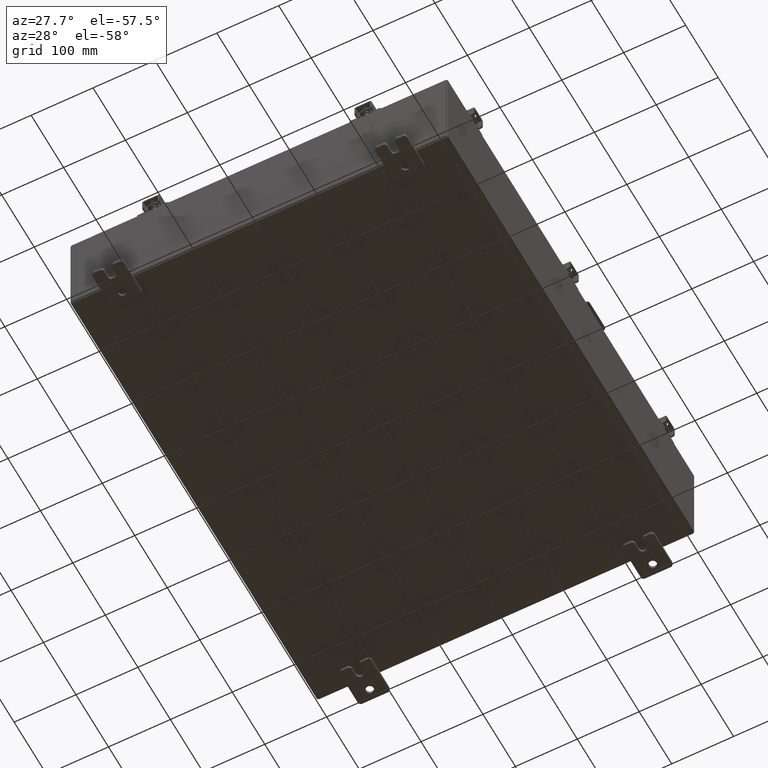
[diagram: clean part render]
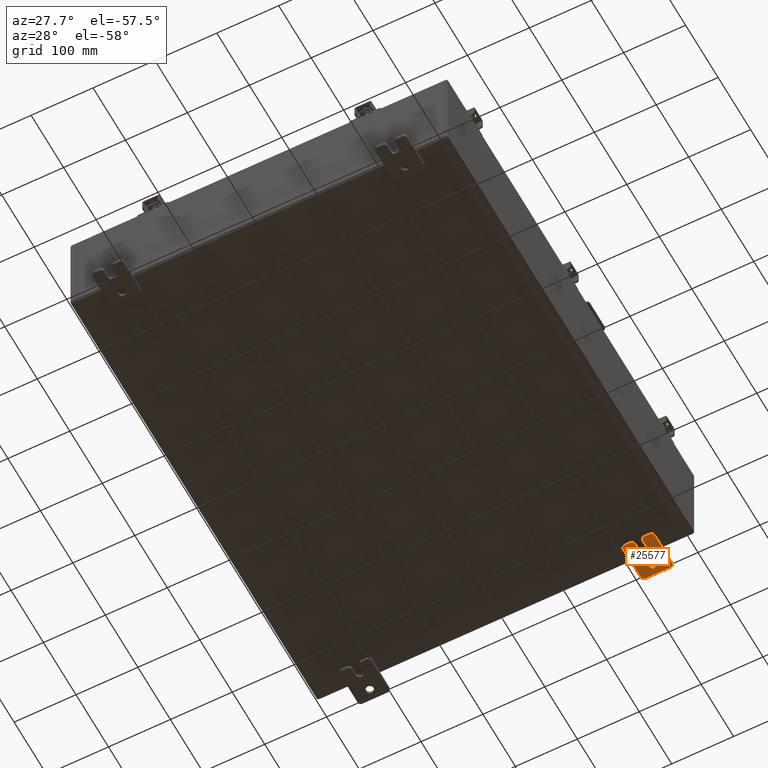
[diagram: same view with one face highlighted and labeled with its STEP entity id]
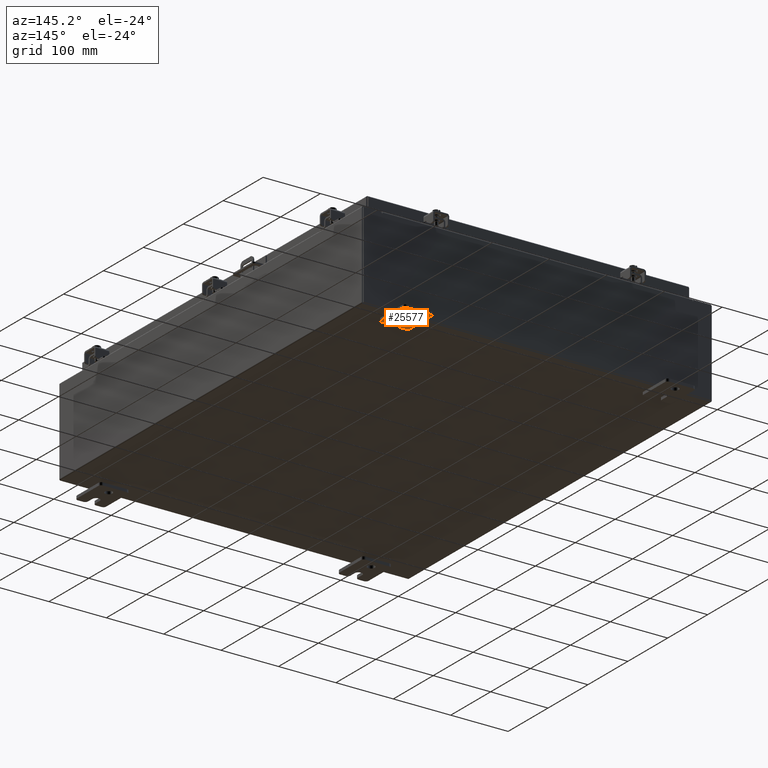
[diagram: same view with one face highlighted and labeled with its STEP entity id]
A machine part, auxiliary view. The second image highlights one B-rep face of the part: STEP entity #25577.
A second angle (auxiliary view) of the same face is appended — the face is thin or edge-on in the first view.
In plain terms, the highlighted planar face has unit normal (0, 0, 1).
Its self-contained STEP definition (entity closure, byte-faithful):
#167 = CARTESIAN_POINT ( 'NONE',  ( -0.1880000000000010000, 0.6249999999999992200, -0.2499999999999999200 ) ) ;
#331 = CARTESIAN_POINT ( 'NONE',  ( -0.1879999999999997800, 1.249999999999997300, 0.8099999999999935000 ) ) ;
#651 = AXIS2_PLACEMENT_3D ( 'NONE', #14513, #20397, #25676 ) ;
#767 = VERTEX_POINT ( 'NONE', #18062 ) ;
#1027 = DIRECTION ( 'NONE',  ( -1.000000000000000000, -0.0000000000000000000, 0.0000000000000000000 ) ) ;
#1116 = VERTEX_POINT ( 'NONE', #28256 ) ;
#1676 = DIRECTION ( 'NONE',  ( 0.0000000000000000000, -1.639108796198553600E-015, -1.000000000000000000 ) ) ;
#1984 = CARTESIAN_POINT ( 'NONE',  ( -0.1879999999999997800, 0.0000000000000000000, 0.0000000000000000000 ) ) ;
#2653 = DIRECTION ( 'NONE',  ( -6.556435184794182400E-016, -1.000000000000000000, -1.639108796198545600E-016 ) ) ;
#2757 = DIRECTION ( 'NONE',  ( 6.556435184794182400E-016, 1.000000000000000000, 0.0000000000000000000 ) ) ;
#2894 = VERTEX_POINT ( 'NONE', #27580 ) ;
#3770 = AXIS2_PLACEMENT_3D ( 'NONE', #19322, #10724, #34081 ) ;
#3846 = CARTESIAN_POINT ( 'NONE',  ( -0.1879999999999997800, -1.060000000000004100, -0.8100000000000050500 ) ) ;
#3854 = VERTEX_POINT ( 'NONE', #23703 ) ;
#4338 = ORIENTED_EDGE ( 'NONE', *, *, #22872, .F. ) ;
#4478 = EDGE_CURVE ( 'NONE', #13732, #26763, #14369, .T. ) ;
#4545 = CARTESIAN_POINT ( 'NONE',  ( -0.1879999999999997800, -1.250000000000004700, -0.4400000000000002200 ) ) ;
#4875 = EDGE_CURVE ( 'NONE', #22555, #3854, #8424, .T. ) ;
#5022 = CARTESIAN_POINT ( 'NONE',  ( -0.1879999999999997800, 1.249999999999994200, -1.000000000000010400 ) ) ;
#5523 = CARTESIAN_POINT ( 'NONE',  ( -0.1879999999999997800, -1.060000000000002100, 0.4400000000000016700 ) ) ;
#5524 = ORIENTED_EDGE ( 'NONE', *, *, #37393, .F. ) ;
#5550 = ORIENTED_EDGE ( 'NONE', *, *, #29473, .T. ) ;
#5913 = VERTEX_POINT ( 'NONE', #4545 ) ;
#6344 = CIRCLE ( 'NONE', #19071, 0.1900000000000011400 ) ;
#6446 = CARTESIAN_POINT ( 'NONE',  ( -0.1879999999999997800, 1.059999999999993600, -0.8100000000000089400 ) ) ;
#6450 = EDGE_CURVE ( 'NONE', #18384, #767, #31538, .T. ) ;
#6589 = VECTOR ( 'NONE', #16832, 39.37007874015748100 ) ;
#7373 = LINE ( 'NONE', #12220, #36027 ) ;
#7736 = DIRECTION ( 'NONE',  ( 1.000000000000000000, -0.0000000000000000000, -5.163192708025532000E-017 ) ) ;
#7870 = LINE ( 'NONE', #29080, #30231 ) ;
#8424 = CIRCLE ( 'NONE', #21058, 0.2499999999999999200 ) ;
#8456 = DIRECTION ( 'NONE',  ( 0.0000000000000000000, 0.0000000000000000000, -1.000000000000000000 ) ) ;
#8605 = EDGE_LOOP ( 'NONE', ( #20680, #24032, #21090, #27503, #31078, #31838, #18757, #23226, #24232, #15694, #11760, #4338, #5524, #5550 ) ) ;
#8809 = CARTESIAN_POINT ( 'NONE',  ( -0.1879999999999997800, -1.250000000000002400, 0.8099999999999980500 ) ) ;
#9538 = DIRECTION ( 'NONE',  ( 0.0000000000000000000, 0.0000000000000000000, -1.000000000000000000 ) ) ;
#9978 = ORIENTED_EDGE ( 'NONE', *, *, #36049, .T. ) ;
#10724 = DIRECTION ( 'NONE',  ( -1.000000000000000000, 6.523827964459549700E-016, 5.163192708025532000E-017 ) ) ;
#10929 = CARTESIAN_POINT ( 'NONE',  ( -0.1879999999999997800, 1.249999999999994700, -0.8100000000000092700 ) ) ;
#11382 = CIRCLE ( 'NONE', #13263, 0.1900000000000011100 ) ;
#11760 = ORIENTED_EDGE ( 'NONE', *, *, #16758, .F. ) ;
#12220 = CARTESIAN_POINT ( 'NONE',  ( -0.1880000000000001900, -0.6249999999999992200, -0.2499999999999993900 ) ) ;
#13263 = AXIS2_PLACEMENT_3D ( 'NONE', #3846, #32931, #9538 ) ;
#13308 = VERTEX_POINT ( 'NONE', #331 ) ;
#13732 = VERTEX_POINT ( 'NONE', #10929 ) ;
#13755 = CARTESIAN_POINT ( 'NONE',  ( -0.1879999999999997800, -1.250000000000002200, 0.9999999999999992200 ) ) ;
#14128 = AXIS2_PLACEMENT_3D ( 'NONE', #6446, #35653, #23940 ) ;
#14253 = LINE ( 'NONE', #5022, #6589 ) ;
#14369 = CIRCLE ( 'NONE', #14128, 0.1900000000000011100 ) ;
#14513 = CARTESIAN_POINT ( 'NONE',  ( -0.1879999999999997800, 1.059999999999996300, 0.8099999999999938400 ) ) ;
#14759 = EDGE_CURVE ( 'NONE', #35270, #1116, #11382, .T. ) ;
#15079 = ORIENTED_EDGE ( 'NONE', *, *, #4875, .T. ) ;
#15608 = VECTOR ( 'NONE', #28979, 39.37007874015748100 ) ;
#15694 = ORIENTED_EDGE ( 'NONE', *, *, #27044, .T. ) ;
#16758 = EDGE_CURVE ( 'NONE', #22753, #26482, #7373, .T. ) ;
#16832 = DIRECTION ( 'NONE',  ( 0.0000000000000000000, 1.639108796198553600E-015, 1.000000000000000000 ) ) ;
#17189 = LINE ( 'NONE', #13755, #34138 ) ;
#18062 = CARTESIAN_POINT ( 'NONE',  ( -0.1879999999999997800, -1.060000000000001200, 0.9999999999999988900 ) ) ;
#18206 = CARTESIAN_POINT ( 'NONE',  ( -0.1880000000000001900, -0.6249999999999992200, 0.2500000000000005000 ) ) ;
#18384 = VERTEX_POINT ( 'NONE', #8809 ) ;
#18608 = CARTESIAN_POINT ( 'NONE',  ( -0.1879999999999997800, -1.060000000000004500, -1.000000000000006400 ) ) ;
#18757 = ORIENTED_EDGE ( 'NONE', *, *, #20815, .F. ) ;
#18982 = FACE_BOUND ( 'NONE', #30115, .T. ) ;
#19071 = AXIS2_PLACEMENT_3D ( 'NONE', #5523, #23547, #19542 ) ;
#19126 = CARTESIAN_POINT ( 'NONE',  ( -0.1879999999999997800, -1.250000000000003100, 0.4400000000000020000 ) ) ;
#19322 = CARTESIAN_POINT ( 'NONE',  ( -0.1880000000000001900, -0.6249999999999992200, 6.829619984160658000E-017 ) ) ;
#19398 = EDGE_CURVE ( 'NONE', #2894, #13308, #24711, .T. ) ;
#19542 = DIRECTION ( 'NONE',  ( 0.0000000000000000000, 0.0000000000000000000, -1.000000000000000000 ) ) ;
#19578 = LINE ( 'NONE', #22897, #20301 ) ;
#19938 = AXIS2_PLACEMENT_3D ( 'NONE', #25206, #7736, #28164 ) ;
#20101 = CARTESIAN_POINT ( 'NONE',  ( -0.1880000000000001900, -0.6249999999999992200, -0.2499999999999998600 ) ) ;
#20150 = VERTEX_POINT ( 'NONE', #19126 ) ;
#20240 = CIRCLE ( 'NONE', #19938, 0.2499999999999999200 ) ;
#20301 = VECTOR ( 'NONE', #29297, 39.37007874015748100 ) ;
#20397 = DIRECTION ( 'NONE',  ( -1.000000000000000000, -0.0000000000000000000, 0.0000000000000000000 ) ) ;
#20638 = EDGE_CURVE ( 'NONE', #5913, #1116, #28612, .T. ) ;
#20680 = ORIENTED_EDGE ( 'NONE', *, *, #24637, .F. ) ;
#20815 = EDGE_CURVE ( 'NONE', #35270, #26763, #29487, .T. ) ;
#20857 = DIRECTION ( 'NONE',  ( 1.000000000000000000, 0.0000000000000000000, -0.0000000000000000000 ) ) ;
#21058 = AXIS2_PLACEMENT_3D ( 'NONE', #35513, #35393, #35137 ) ;
#21090 = ORIENTED_EDGE ( 'NONE', *, *, #27213, .F. ) ;
#21326 = AXIS2_PLACEMENT_3D ( 'NONE', #34401, #1027, #8456 ) ;
#21719 = DIRECTION ( 'NONE',  ( 0.0000000000000000000, -1.639108796198553600E-015, -1.000000000000000000 ) ) ;
#22466 = CIRCLE ( 'NONE', #21326, 0.1900000000000011100 ) ;
#22555 = VERTEX_POINT ( 'NONE', #167 ) ;
#22753 = VERTEX_POINT ( 'NONE', #20101 ) ;
#22872 = EDGE_CURVE ( 'NONE', #37001, #22753, #37426, .T. ) ;
#22897 = CARTESIAN_POINT ( 'NONE',  ( -0.1879999999999997800, 1.249999999999997600, 0.9999999999999951200 ) ) ;
#23226 = ORIENTED_EDGE ( 'NONE', *, *, #14759, .T. ) ;
#23547 = DIRECTION ( 'NONE',  ( -1.000000000000000000, -0.0000000000000000000, 0.0000000000000000000 ) ) ;
#23571 = DIRECTION ( 'NONE',  ( -0.0000000000000000000, 0.0000000000000000000, -1.000000000000000000 ) ) ;
#23703 = CARTESIAN_POINT ( 'NONE',  ( -0.1880000000000010000, 0.6249999999999992200, 0.2499999999999999200 ) ) ;
#23940 = DIRECTION ( 'NONE',  ( 0.0000000000000000000, 0.0000000000000000000, -1.000000000000000000 ) ) ;
#24032 = ORIENTED_EDGE ( 'NONE', *, *, #6450, .T. ) ;
#24232 = ORIENTED_EDGE ( 'NONE', *, *, #20638, .F. ) ;
#24637 = EDGE_CURVE ( 'NONE', #18384, #20150, #17189, .T. ) ;
#24711 = CIRCLE ( 'NONE', #651, 0.1900000000000011100 ) ;
#25206 = CARTESIAN_POINT ( 'NONE',  ( -0.1880000000000010000, 0.6249999999999992200, -7.703811342100550500E-020 ) ) ;
#25577 = ADVANCED_FACE ( 'NONE', ( #18982, #31331 ), #36780, .F. ) ;
#25676 = DIRECTION ( 'NONE',  ( 0.0000000000000000000, 0.0000000000000000000, -1.000000000000000000 ) ) ;
#26482 = VERTEX_POINT ( 'NONE', #35687 ) ;
#26763 = VERTEX_POINT ( 'NONE', #30039 ) ;
#27044 = EDGE_CURVE ( 'NONE', #5913, #26482, #22466, .T. ) ;
#27213 = EDGE_CURVE ( 'NONE', #2894, #767, #19578, .T. ) ;
#27503 = ORIENTED_EDGE ( 'NONE', *, *, #19398, .T. ) ;
#27580 = CARTESIAN_POINT ( 'NONE',  ( -0.1879999999999997800, 1.059999999999996500, 0.9999999999999953400 ) ) ;
#28164 = DIRECTION ( 'NONE',  ( 0.0000000000000000000, 0.0000000000000000000, -1.000000000000000000 ) ) ;
#28256 = CARTESIAN_POINT ( 'NONE',  ( -0.1879999999999997800, -1.250000000000005300, -0.8100000000000047200 ) ) ;
#28612 = LINE ( 'NONE', #32862, #35977 ) ;
#28979 = DIRECTION ( 'NONE',  ( 0.0000000000000000000, 1.000000000000000000, -1.639108796198558100E-015 ) ) ;
#29080 = CARTESIAN_POINT ( 'NONE',  ( -0.1880000000000005800, -1.250000000000003800, 0.2500000000000005000 ) ) ;
#29297 = DIRECTION ( 'NONE',  ( 0.0000000000000000000, -1.000000000000000000, 1.639108796198558100E-015 ) ) ;
#29473 = EDGE_CURVE ( 'NONE', #31090, #20150, #6344, .T. ) ;
#29487 = LINE ( 'NONE', #33198, #15608 ) ;
#30039 = CARTESIAN_POINT ( 'NONE',  ( -0.1879999999999997800, 1.059999999999993400, -1.000000000000010000 ) ) ;
#30115 = EDGE_LOOP ( 'NONE', ( #15079, #9978 ) ) ;
#30231 = VECTOR ( 'NONE', #2757, 39.37007874015748100 ) ;
#31078 = ORIENTED_EDGE ( 'NONE', *, *, #36677, .F. ) ;
#31090 = VERTEX_POINT ( 'NONE', #32747 ) ;
#31331 = FACE_OUTER_BOUND ( 'NONE', #8605, .T. ) ;
#31538 = CIRCLE ( 'NONE', #36988, 0.1900000000000011100 ) ;
#31592 = AXIS2_PLACEMENT_3D ( 'NONE', #1984, #20857, #23571 ) ;
#31838 = ORIENTED_EDGE ( 'NONE', *, *, #4478, .T. ) ;
#32747 = CARTESIAN_POINT ( 'NONE',  ( -0.1880000000000004700, -1.060000000000002100, 0.2500000000000005000 ) ) ;
#32862 = CARTESIAN_POINT ( 'NONE',  ( -0.1879999999999997800, -1.250000000000002200, 0.9999999999999992200 ) ) ;
#32931 = DIRECTION ( 'NONE',  ( -1.000000000000000000, -0.0000000000000000000, 0.0000000000000000000 ) ) ;
#33198 = CARTESIAN_POINT ( 'NONE',  ( -0.1879999999999997800, -1.250000000000005600, -1.000000000000006200 ) ) ;
#34081 = DIRECTION ( 'NONE',  ( -6.829619984160660000E-016, -1.000000000000000000, 0.0000000000000000000 ) ) ;
#34138 = VECTOR ( 'NONE', #21719, 39.37007874015748100 ) ;
#34401 = CARTESIAN_POINT ( 'NONE',  ( -0.1879999999999997800, -1.060000000000003400, -0.4400000000000005000 ) ) ;
#35137 = DIRECTION ( 'NONE',  ( 0.0000000000000000000, 0.0000000000000000000, -1.000000000000000000 ) ) ;
#35270 = VERTEX_POINT ( 'NONE', #18608 ) ;
#35393 = DIRECTION ( 'NONE',  ( 1.000000000000000000, -0.0000000000000000000, -5.163192708025532000E-017 ) ) ;
#35489 = DIRECTION ( 'NONE',  ( 0.0000000000000000000, 7.189073667537492800E-016, -1.000000000000000000 ) ) ;
#35513 = CARTESIAN_POINT ( 'NONE',  ( -0.1880000000000010000, 0.6249999999999992200, -7.703811342100550500E-020 ) ) ;
#35645 = DIRECTION ( 'NONE',  ( -1.000000000000000000, -0.0000000000000000000, 0.0000000000000000000 ) ) ;
#35653 = DIRECTION ( 'NONE',  ( -1.000000000000000000, -0.0000000000000000000, 0.0000000000000000000 ) ) ;
#35687 = CARTESIAN_POINT ( 'NONE',  ( -0.1880000000000004700, -1.060000000000003400, -0.2499999999999994400 ) ) ;
#35697 = CARTESIAN_POINT ( 'NONE',  ( -0.1879999999999997800, -1.060000000000001600, 0.8099999999999978300 ) ) ;
#35977 = VECTOR ( 'NONE', #1676, 39.37007874015748100 ) ;
#36027 = VECTOR ( 'NONE', #2653, 39.37007874015748100 ) ;
#36049 = EDGE_CURVE ( 'NONE', #3854, #22555, #20240, .T. ) ;
#36677 = EDGE_CURVE ( 'NONE', #13732, #13308, #14253, .T. ) ;
#36780 = PLANE ( 'NONE',  #31592 ) ;
#36988 = AXIS2_PLACEMENT_3D ( 'NONE', #35697, #35645, #35489 ) ;
#37001 = VERTEX_POINT ( 'NONE', #18206 ) ;
#37393 = EDGE_CURVE ( 'NONE', #31090, #37001, #7870, .T. ) ;
#37426 = CIRCLE ( 'NONE', #3770, 0.2499999999999999200 ) ;